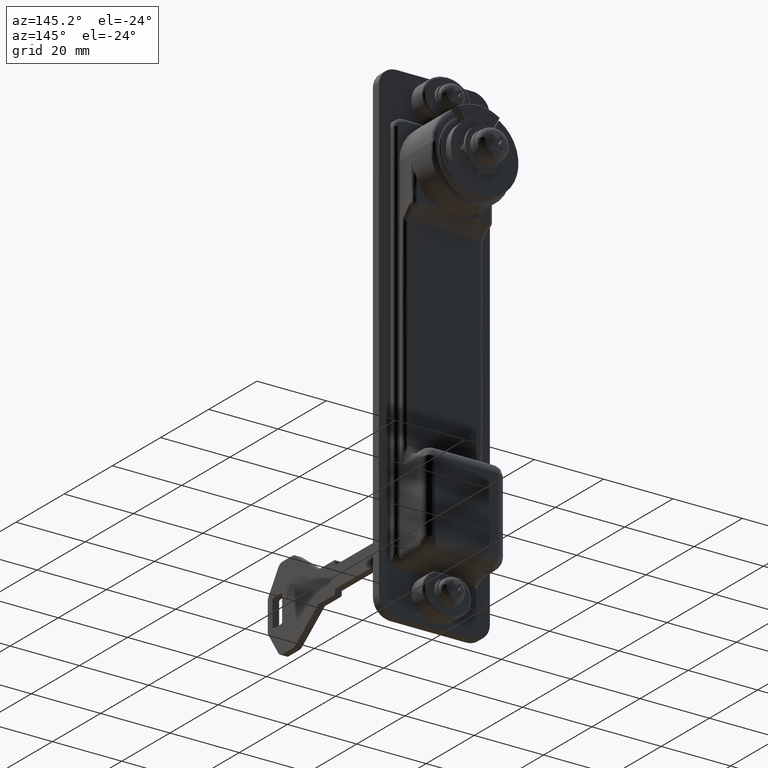
[diagram: clean part render]
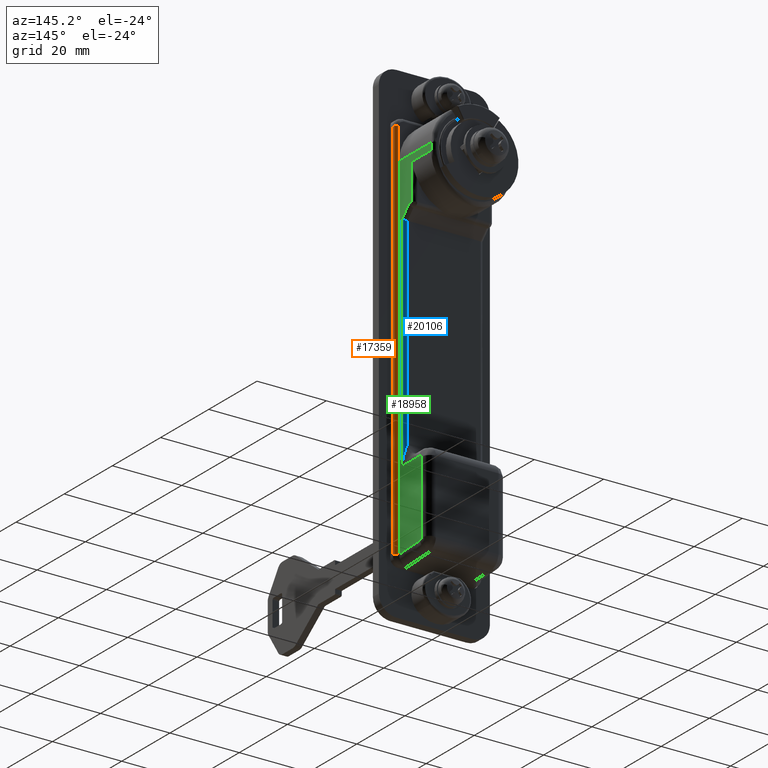
[diagram: same view with three faces highlighted in distinct colors, each labeled with its STEP entity id]
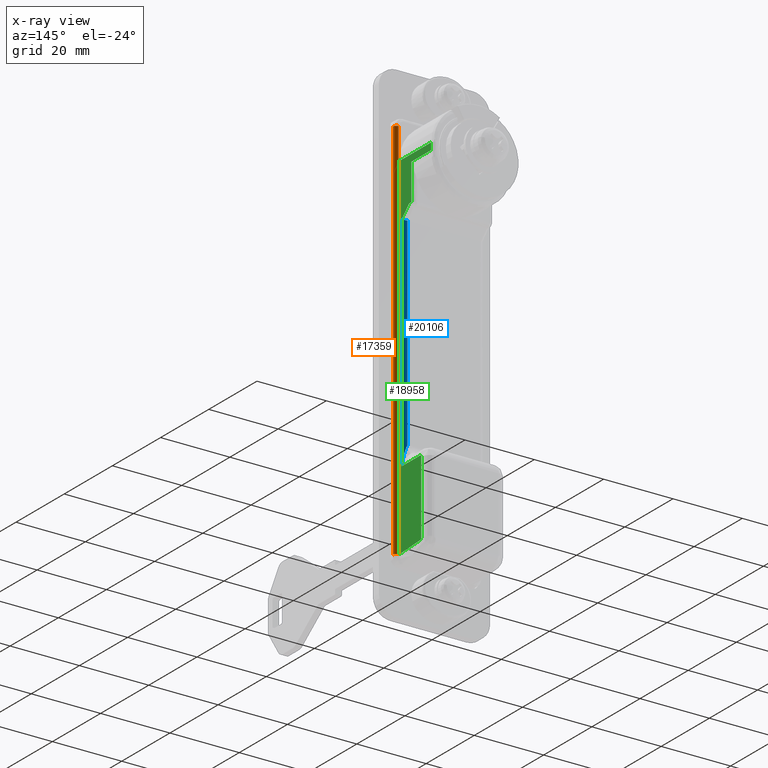
[diagram: x-ray of the same camera — body ghosted, the three highlighted faces saturated]
A machine part, auxiliary view with three faces highlighted in distinct colors.
The next image is the same camera in x-ray (body ghosted, the three faces saturated) — at least one of them is partly hidden behind the body in this view.
Their STEP definitions:

[orange] entity #17359 — the highlighted face is a freeform B-spline surface patch.
#17268=CARTESIAN_POINT('',(2.000000000000225,-12.699999999999999,10.0));
#17269=VERTEX_POINT('',#17268);
#17270=CARTESIAN_POINT('',(3.000000000000170,-11.699999999999999,10.0));
#17271=VERTEX_POINT('',#17270);
#17272=CARTESIAN_POINT('',(2.000000000000225,-12.699999999999999,10.0));
#17273=CARTESIAN_POINT('',(3.000000000000171,-12.699999999999999,10.000000000000002));
#17274=CARTESIAN_POINT('',(3.000000000000170,-11.699999999999999,10.0));
#17282=(BOUNDED_CURVE()B_SPLINE_CURVE(2,(#17272,#17273,#17274),.UNSPECIFIED.,.F.,.U.)CURVE()GEOMETRIC_REPRESENTATION_ITEM()QUASI_UNIFORM_CURVE()RATIONAL_B_SPLINE_CURVE((1.0,0.707106781186548,1.0))REPRESENTATION_ITEM(''));
#17283=EDGE_CURVE('',#17269,#17271,#17282,.T.);
#17315=CARTESIAN_POINT('',(2.999657324975726,-11.673823051692070,-103.775000000000010));
#17316=CARTESIAN_POINT('',(2.999657324975726,-11.673823051692070,12.844375000000010));
#17317=CARTESIAN_POINT('',(3.028492260443905,-12.774984811148821,-103.775000000000010));
#17318=CARTESIAN_POINT('',(3.028492260443905,-12.774984811148821,12.844375000000012));
#17319=CARTESIAN_POINT('',(1.929679914821869,-12.697524478707418,-103.775000000000030));
#17320=CARTESIAN_POINT('',(1.929679914821869,-12.697524478707418,12.844375000000012));
#17328=(BOUNDED_SURFACE()B_SPLINE_SURFACE(1,2,((#17315,#17317,#17319),(#17316,#17318,#17320)),.UNSPECIFIED.,.F.,.F.,.U.)B_SPLINE_SURFACE_WITH_KNOTS((2,2),(3,3),(0.0,116.619375000000010),(0.0,0.994518638753891),.UNSPECIFIED.)GEOMETRIC_REPRESENTATION_ITEM()RATIONAL_B_SPLINE_SURFACE(((1.0,0.670944221030686,0.996392652810699),(1.0,0.670944221030686,0.996392652810699)))REPRESENTATION_ITEM('')SURFACE());
#17329=CARTESIAN_POINT('',(2.000000000000225,-12.699999999999999,-101.0));
#17330=VERTEX_POINT('',#17329);
#17331=CARTESIAN_POINT('',(3.000000000000170,-11.699999999999999,-101.0));
#17332=VERTEX_POINT('',#17331);
#17333=CARTESIAN_POINT('',(2.000000000000225,-12.699999999999999,-101.0));
#17334=CARTESIAN_POINT('',(3.000000000000225,-12.699999999999999,-101.0));
#17335=CARTESIAN_POINT('',(3.000000000000225,-11.699999999999999,-101.0));
#17343=(BOUNDED_CURVE()B_SPLINE_CURVE(2,(#17333,#17334,#17335),.UNSPECIFIED.,.F.,.U.)CURVE()GEOMETRIC_REPRESENTATION_ITEM()QUASI_UNIFORM_CURVE()RATIONAL_B_SPLINE_CURVE((1.0,0.707106781186548,1.0))REPRESENTATION_ITEM(''));
#17344=EDGE_CURVE('',#17330,#17332,#17343,.T.);
#17345=ORIENTED_EDGE('',*,*,#17344,.T.);
#17346=CARTESIAN_POINT('',(3.000000000000170,-11.699999999999999,10.0));
#17347=CARTESIAN_POINT('',(3.000000000000170,-11.699999999999999,-101.0));
#17348=QUASI_UNIFORM_CURVE('',1,(#17346,#17347),.UNSPECIFIED.,.F.,.U.);
#17349=EDGE_CURVE('',#17271,#17332,#17348,.T.);
#17350=ORIENTED_EDGE('',*,*,#17349,.F.);
#17351=ORIENTED_EDGE('',*,*,#17283,.F.);
#17352=CARTESIAN_POINT('',(2.000000000000225,-12.699999999999999,-101.0));
#17353=CARTESIAN_POINT('',(2.000000000000225,-12.699999999999999,10.0));
#17354=QUASI_UNIFORM_CURVE('',1,(#17352,#17353),.UNSPECIFIED.,.F.,.U.);
#17355=EDGE_CURVE('',#17330,#17269,#17354,.T.);
#17356=ORIENTED_EDGE('',*,*,#17355,.F.);
#17357=EDGE_LOOP('',(#17345,#17350,#17351,#17356));
#17358=FACE_OUTER_BOUND('',#17357,.T.);
#17359=ADVANCED_FACE('',(#17358),#17328,.T.);

[blue] entity #20106 — the highlighted face is a freeform B-spline surface patch.
#16261=CARTESIAN_POINT('',(5.0,-10.500000000000000,-73.208497377870785));
#16262=VERTEX_POINT('',#16261);
#16431=CARTESIAN_POINT('',(4.0,-11.500000000000000,-78.500000000000000));
#16432=VERTEX_POINT('',#16431);
#16433=CARTESIAN_POINT('',(4.0,-11.500000000000000,-78.500000000000000));
#16434=CARTESIAN_POINT('',(4.011995366252879,-11.500000000000000,-78.443736729156896));
#16435=CARTESIAN_POINT('',(4.024110486568084,-11.499782159126379,-78.386911799827132));
#16436=CARTESIAN_POINT('',(4.048234387910386,-11.498908967370330,-78.273745515130571));
#16437=CARTESIAN_POINT('',(4.060294235846097,-11.498253836185709,-78.217164655819047));
#16438=CARTESIAN_POINT('',(4.096462776034123,-11.495630151302571,-78.047427959947271));
#16439=CARTESIAN_POINT('',(4.120564125845470,-11.493003296766959,-77.934261023942781));
#16440=CARTESIAN_POINT('',(4.192744463951831,-11.482453355096141,-77.594968589655167));
#16441=CARTESIAN_POINT('',(4.240709204036837,-11.471874251066620,-77.369015710296424));
#16442=CARTESIAN_POINT('',(4.336085752591535,-11.443147309649630,-76.917580284642611));
#16443=CARTESIAN_POINT('',(4.383499833103487,-11.425006125886791,-76.692097699735442));
#16444=CARTESIAN_POINT('',(4.477447846276457,-11.380199982392901,-76.241608175712955));
#16445=CARTESIAN_POINT('',(4.524003208652457,-11.353539671417661,-76.016520193384252));
#16446=CARTESIAN_POINT('',(4.615648779138610,-11.289991084827530,-75.567192489409095));
#16447=CARTESIAN_POINT('',(4.660668148943619,-11.253199866581051,-75.343358780095230));
#16448=CARTESIAN_POINT('',(4.748093823959596,-11.166444350714899,-74.897772710629923));
#16449=CARTESIAN_POINT('',(4.790547294405806,-11.116611790682301,-74.676003645510065));
#16450=CARTESIAN_POINT('',(4.850636598168940,-11.026983072907250,-74.345576167205678));
#16451=CARTESIAN_POINT('',(4.870002853824423,-10.994667638725931,-74.236100371100079));
#16452=CARTESIAN_POINT('',(4.906744464419486,-10.923574686106180,-74.019102276747034));
#16453=CARTESIAN_POINT('',(4.924144676860545,-10.884835088757891,-73.911540831024325));
#16454=CARTESIAN_POINT('',(4.947838153643233,-10.819590662919760,-73.752254449686006));
#16455=CARTESIAN_POINT('',(4.955340813929308,-10.796590177801310,-73.699408347436233));
#16456=CARTESIAN_POINT('',(4.969133224663757,-10.747835827071381,-73.595367230298152));
#16457=CARTESIAN_POINT('',(4.975435713813142,-10.722073643001320,-73.544118887544727));
#16458=CARTESIAN_POINT('',(4.986378610027018,-10.666879514558261,-73.443660016306794));
#16459=CARTESIAN_POINT('',(4.991029959467020,-10.637466219331291,-73.394439364064866));
#16460=CARTESIAN_POINT('',(4.997821807411985,-10.573409690583210,-73.298889021299530));
#16461=CARTESIAN_POINT('',(5.000000000000001,-10.538829084553971,-73.252525421313393));
#16462=CARTESIAN_POINT('',(5.0,-10.500000000000000,-73.208497377870785));
#16463=B_SPLINE_CURVE_WITH_KNOTS('',3,(#16433,#16434,#16435,#16436,#16437,#16438,#16439,#16440,#16441,#16442,#16443,#16444,#16445,#16446,#16447,#16448,#16449,#16450,#16451,#16452,#16453,#16454,#16455,#16456,#16457,#16458,#16459,#16460,#16461,#16462),.UNSPECIFIED.,.F.,.U.,(4,2,2,2,2,2,2,2,2,2,2,2,2,2,4),(0.0,0.031250000000000,0.062500000000000,0.125000000000000,0.250000000000000,0.375000000000000,0.500000000000000,0.625000000000000,0.750000000000000,0.812500000000000,0.875000000000000,0.906250000000000,0.937500000000000,0.968750000000000,1.0),.UNSPECIFIED.);
#16464=EDGE_CURVE('',#16432,#16262,#16463,.T.);
#18886=CARTESIAN_POINT('',(4.0,-11.500000000000000,-14.536248437626980));
#18887=VERTEX_POINT('',#18886);
#18888=CARTESIAN_POINT('',(4.0,-11.500000000000000,-78.500000000000000));
#18889=CARTESIAN_POINT('',(4.0,-11.500000000000000,-14.536248437626980));
#18890=QUASI_UNIFORM_CURVE('',1,(#18888,#18889),.UNSPECIFIED.,.F.,.U.);
#18891=EDGE_CURVE('',#16432,#18887,#18890,.T.);
#20068=CARTESIAN_POINT('',(3.973823051692127,-11.499657324975560,-12.937154648567660));
#20069=CARTESIAN_POINT('',(3.973823051692127,-11.499657324975560,-80.139071133785805));
#20070=CARTESIAN_POINT('',(5.074984800554719,-11.528492260166264,-12.937154648567654));
#20071=CARTESIAN_POINT('',(5.074984800554719,-11.528492260166264,-80.139071133785805));
#20072=CARTESIAN_POINT('',(4.997524479380810,-10.429679924374021,-12.937154648567661));
#20073=CARTESIAN_POINT('',(4.997524479380810,-10.429679924374021,-80.139071133785819));
#20081=(BOUNDED_SURFACE()B_SPLINE_SURFACE(1,2,((#20068,#20070,#20072),(#20069,#20071,#20073)),.UNSPECIFIED.,.F.,.F.,.U.)B_SPLINE_SURFACE_WITH_KNOTS((2,2),(3,3),(0.0,67.201916485218163),(0.0,0.994518632334191),.UNSPECIFIED.)GEOMETRIC_REPRESENTATION_ITEM()RATIONAL_B_SPLINE_SURFACE(((1.0,0.670944223154768,0.996392648609106),(1.0,0.670944223154768,0.996392648609106)))REPRESENTATION_ITEM('')SURFACE());
#20082=ORIENTED_EDGE('',*,*,#18891,.F.);
#20083=ORIENTED_EDGE('',*,*,#16464,.T.);
#20084=CARTESIAN_POINT('',(5.0,-10.500000000000000,-14.950462000000060));
#20085=VERTEX_POINT('',#20084);
#20086=CARTESIAN_POINT('',(5.0,-10.500000000000000,-14.950462000000060));
#20087=CARTESIAN_POINT('',(5.0,-10.500000000000000,-73.208497377870785));
#20088=QUASI_UNIFORM_CURVE('',1,(#20086,#20087),.UNSPECIFIED.,.F.,.U.);
#20089=EDGE_CURVE('',#20085,#16262,#20088,.T.);
#20090=ORIENTED_EDGE('',*,*,#20089,.F.);
#20091=CARTESIAN_POINT('',(5.0,-10.500000000000000,-14.950462000000080));
#20092=CARTESIAN_POINT('',(5.0,-11.499999957853154,-14.950462000000078));
#20093=CARTESIAN_POINT('',(4.0,-11.500000000000000,-14.536248437626980));
#20101=(BOUNDED_CURVE()B_SPLINE_CURVE(2,(#20091,#20092,#20093),.UNSPECIFIED.,.F.,.U.)CURVE()GEOMETRIC_REPRESENTATION_ITEM()QUASI_UNIFORM_CURVE()RATIONAL_B_SPLINE_CURVE((1.0,0.707106796087708,1.0))REPRESENTATION_ITEM(''));
#20102=EDGE_CURVE('',#20085,#18887,#20101,.T.);
#20103=ORIENTED_EDGE('',*,*,#20102,.T.);
#20104=EDGE_LOOP('',(#20082,#20083,#20090,#20103));
#20105=FACE_OUTER_BOUND('',#20104,.T.);
#20106=ADVANCED_FACE('',(#20105),#20081,.T.);

[green] entity #18958 — the highlighted face is a freeform B-spline surface patch.
#15796=CARTESIAN_POINT('',(12.100000000000000,-11.500000000000000,-79.0));
#15797=VERTEX_POINT('',#15796);
#15828=CARTESIAN_POINT('',(11.600000000000000,-11.500000000000000,-78.500000000000000));
#15829=VERTEX_POINT('',#15828);
#15843=CARTESIAN_POINT('',(12.100000000000000,-11.500000000000000,-79.0));
#15844=CARTESIAN_POINT('',(12.099999999999998,-11.500000000000000,-78.500000000000000));
#15845=CARTESIAN_POINT('',(11.600000000000000,-11.500000000000000,-78.500000000000000));
#15853=(BOUNDED_CURVE()B_SPLINE_CURVE(2,(#15843,#15844,#15845),.UNSPECIFIED.,.F.,.U.)CURVE()GEOMETRIC_REPRESENTATION_ITEM()QUASI_UNIFORM_CURVE()RATIONAL_B_SPLINE_CURVE((1.0,0.707106781186548,1.0))REPRESENTATION_ITEM(''));
#15854=EDGE_CURVE('',#15797,#15829,#15853,.T.);
#15873=CARTESIAN_POINT('',(12.100000000000000,-11.500000000000000,-99.939431657379203));
#15874=VERTEX_POINT('',#15873);
#15896=CARTESIAN_POINT('',(12.100000000000000,-11.500000000000000,-99.939431657379203));
#15897=CARTESIAN_POINT('',(12.100000000000000,-11.500000000000000,-79.0));
#15898=QUASI_UNIFORM_CURVE('',1,(#15896,#15897),.UNSPECIFIED.,.F.,.U.);
#15899=EDGE_CURVE('',#15874,#15797,#15898,.T.);
#15939=CARTESIAN_POINT('',(11.652736318408040,-11.500000000000000,-100.436642760152200));
#15940=VERTEX_POINT('',#15939);
#15968=CARTESIAN_POINT('',(11.652736318408040,-11.500000000000000,-100.436642760152200));
#15969=CARTESIAN_POINT('',(12.100000000000000,-11.500000000000000,-100.389204077079300));
#15970=CARTESIAN_POINT('',(12.100000000000000,-11.500000000000000,-99.939431657379203));
#15978=(BOUNDED_CURVE()B_SPLINE_CURVE(2,(#15968,#15969,#15970),.UNSPECIFIED.,.F.,.U.)CURVE()GEOMETRIC_REPRESENTATION_ITEM()QUASI_UNIFORM_CURVE()RATIONAL_B_SPLINE_CURVE((1.0,0.743462385335024,1.0))REPRESENTATION_ITEM(''));
#15979=EDGE_CURVE('',#15940,#15874,#15978,.T.);
#16431=CARTESIAN_POINT('',(4.0,-11.500000000000000,-78.500000000000000));
#16432=VERTEX_POINT('',#16431);
#18874=CARTESIAN_POINT('',(2.340660025584342,-11.500000000000000,-106.074104760057490));
#18875=CARTESIAN_POINT('',(16.859340328467429,-11.500000000000000,-106.074104760057490));
#18876=CARTESIAN_POINT('',(2.340660025584342,-11.500000000000000,6.093913240686513));
#18877=CARTESIAN_POINT('',(16.859340328467429,-11.500000000000000,6.093913240686513));
#18878=B_SPLINE_SURFACE_WITH_KNOTS('',1,1,((#18874,#18876),(#18875,#18877)),.UNSPECIFIED.,.F.,.F.,.U.,(2,2),(2,2),(0.0,14.518680302883080),(0.0,112.168018000744000),.UNSPECIFIED.);
#18879=ORIENTED_EDGE('',*,*,#15899,.T.);
#18880=ORIENTED_EDGE('',*,*,#15854,.T.);
#18881=CARTESIAN_POINT('',(11.600000000000000,-11.500000000000000,-78.500000000000000));
#18882=CARTESIAN_POINT('',(4.0,-11.500000000000000,-78.500000000000000));
#18883=QUASI_UNIFORM_CURVE('',1,(#18881,#18882),.UNSPECIFIED.,.F.,.U.);
#18884=EDGE_CURVE('',#15829,#16432,#18883,.T.);
#18885=ORIENTED_EDGE('',*,*,#18884,.T.);
#18886=CARTESIAN_POINT('',(4.0,-11.500000000000000,-14.536248437626980));
#18887=VERTEX_POINT('',#18886);
#18888=CARTESIAN_POINT('',(4.0,-11.500000000000000,-78.500000000000000));
#18889=CARTESIAN_POINT('',(4.0,-11.500000000000000,-14.536248437626980));
#18890=QUASI_UNIFORM_CURVE('',1,(#18888,#18889),.UNSPECIFIED.,.F.,.U.);
#18891=EDGE_CURVE('',#16432,#18887,#18890,.T.);
#18892=ORIENTED_EDGE('',*,*,#18891,.T.);
#18893=CARTESIAN_POINT('',(7.036248437626980,-11.500000000000000,-11.500000000000000));
#18894=VERTEX_POINT('',#18893);
#18895=CARTESIAN_POINT('',(4.0,-11.500000000000000,-14.536248437626980));
#18896=CARTESIAN_POINT('',(7.036248437626980,-11.500000000000000,-11.500000000000000));
#18897=QUASI_UNIFORM_CURVE('',1,(#18895,#18896),.UNSPECIFIED.,.F.,.U.);
#18898=EDGE_CURVE('',#18887,#18894,#18897,.T.);
#18899=ORIENTED_EDGE('',*,*,#18898,.T.);
#18900=CARTESIAN_POINT('',(8.000000000000171,-11.500000000000000,-11.500000000000160));
#18901=VERTEX_POINT('',#18900);
#18902=CARTESIAN_POINT('',(7.036248437626980,-11.500000000000000,-11.500000000000000));
#18903=CARTESIAN_POINT('',(8.000000000000171,-11.500000000000000,-11.500000000000160));
#18904=QUASI_UNIFORM_CURVE('',1,(#18902,#18903),.UNSPECIFIED.,.F.,.U.);
#18905=EDGE_CURVE('',#18894,#18901,#18904,.T.);
#18906=ORIENTED_EDGE('',*,*,#18905,.T.);
#18907=CARTESIAN_POINT('',(8.000000000000119,-11.500000000000121,-1.0));
#18908=VERTEX_POINT('',#18907);
#18909=CARTESIAN_POINT('',(8.000000000000171,-11.500000000000000,-11.500000000000160));
#18910=CARTESIAN_POINT('',(8.000000000000119,-11.500000000000121,-1.0));
#18911=QUASI_UNIFORM_CURVE('',1,(#18909,#18910),.UNSPECIFIED.,.F.,.U.);
#18912=EDGE_CURVE('',#18901,#18908,#18911,.T.);
#18913=ORIENTED_EDGE('',*,*,#18912,.T.);
#18914=CARTESIAN_POINT('',(16.199999999999999,-11.500000000000121,-1.0));
#18915=VERTEX_POINT('',#18914);
#18916=CARTESIAN_POINT('',(16.199999999999999,-11.500000000000121,-1.0));
#18917=CARTESIAN_POINT('',(8.000000000000119,-11.500000000000121,-1.0));
#18918=QUASI_UNIFORM_CURVE('',1,(#18916,#18917),.UNSPECIFIED.,.F.,.U.);
#18919=EDGE_CURVE('',#18915,#18908,#18918,.T.);
#18920=ORIENTED_EDGE('',*,*,#18919,.F.);
#18921=CARTESIAN_POINT('',(16.199999999999999,-11.500000000000000,1.0));
#18922=VERTEX_POINT('',#18921);
#18923=CARTESIAN_POINT('',(16.199999999999999,-11.500000000000121,-1.0));
#18924=CARTESIAN_POINT('',(16.199999999999999,-11.500000000000000,1.0));
#18925=QUASI_UNIFORM_CURVE('',1,(#18923,#18924),.UNSPECIFIED.,.F.,.U.);
#18926=EDGE_CURVE('',#18915,#18922,#18925,.T.);
#18927=ORIENTED_EDGE('',*,*,#18926,.T.);
#18928=CARTESIAN_POINT('',(3.000000000000225,-11.500000000000000,1.0));
#18929=VERTEX_POINT('',#18928);
#18930=CARTESIAN_POINT('',(16.199999999999999,-11.500000000000000,1.0));
#18931=CARTESIAN_POINT('',(3.000000000000225,-11.500000000000000,1.0));
#18932=QUASI_UNIFORM_CURVE('',1,(#18930,#18931),.UNSPECIFIED.,.F.,.U.);
#18933=EDGE_CURVE('',#18922,#18929,#18932,.T.);
#18934=ORIENTED_EDGE('',*,*,#18933,.T.);
#18935=CARTESIAN_POINT('',(3.000000000000170,-11.500000000000000,-100.980196078240990));
#18936=VERTEX_POINT('',#18935);
#18937=CARTESIAN_POINT('',(3.000000000000170,-11.500000000000000,-100.980196078240990));
#18938=CARTESIAN_POINT('',(3.000000000000225,-11.500000000000000,1.0));
#18939=QUASI_UNIFORM_CURVE('',1,(#18937,#18938),.UNSPECIFIED.,.F.,.U.);
#18940=EDGE_CURVE('',#18936,#18929,#18939,.T.);
#18941=ORIENTED_EDGE('',*,*,#18940,.F.);
#18942=CARTESIAN_POINT('',(3.000000000000170,-11.500000000000000,-100.980196078240990));
#18943=CARTESIAN_POINT('',(7.338043507609859,-11.500000000000005,-100.894277379801420));
#18944=CARTESIAN_POINT('',(11.652736318408060,-11.500000000000000,-100.436642760152400));
#18952=(BOUNDED_CURVE()B_SPLINE_CURVE(2,(#18942,#18943,#18944),.UNSPECIFIED.,.F.,.U.)CURVE()GEOMETRIC_REPRESENTATION_ITEM()QUASI_UNIFORM_CURVE()RATIONAL_B_SPLINE_CURVE((1.0,0.999078522405438,1.0))REPRESENTATION_ITEM(''));
#18953=EDGE_CURVE('',#18936,#15940,#18952,.T.);
#18954=ORIENTED_EDGE('',*,*,#18953,.T.);
#18955=ORIENTED_EDGE('',*,*,#15979,.T.);
#18956=EDGE_LOOP('',(#18879,#18880,#18885,#18892,#18899,#18906,#18913,#18920,#18927,#18934,#18941,#18954,#18955));
#18957=FACE_OUTER_BOUND('',#18956,.T.);
#18958=ADVANCED_FACE('',(#18957),#18878,.T.);